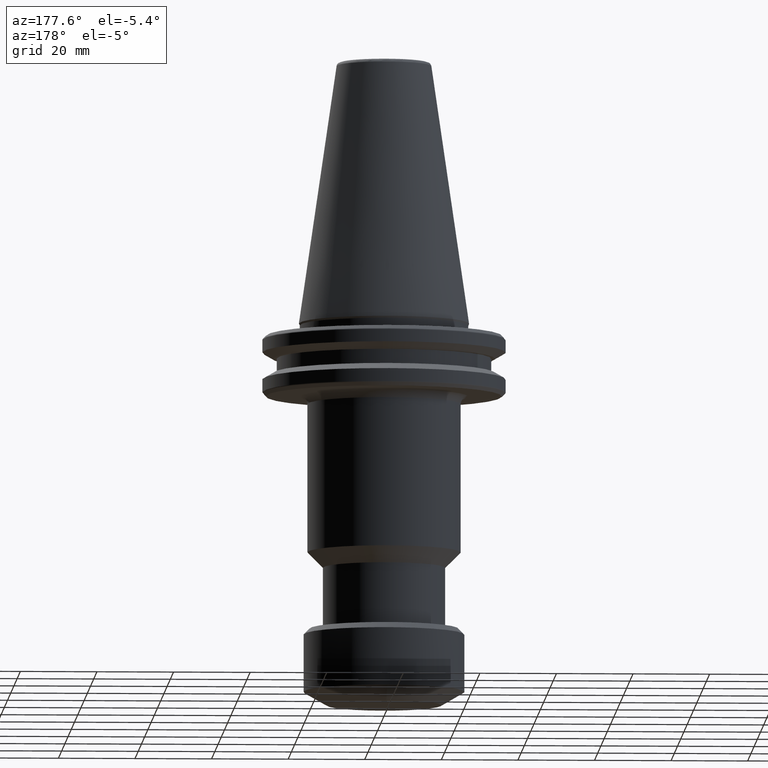
[diagram: clean part render]
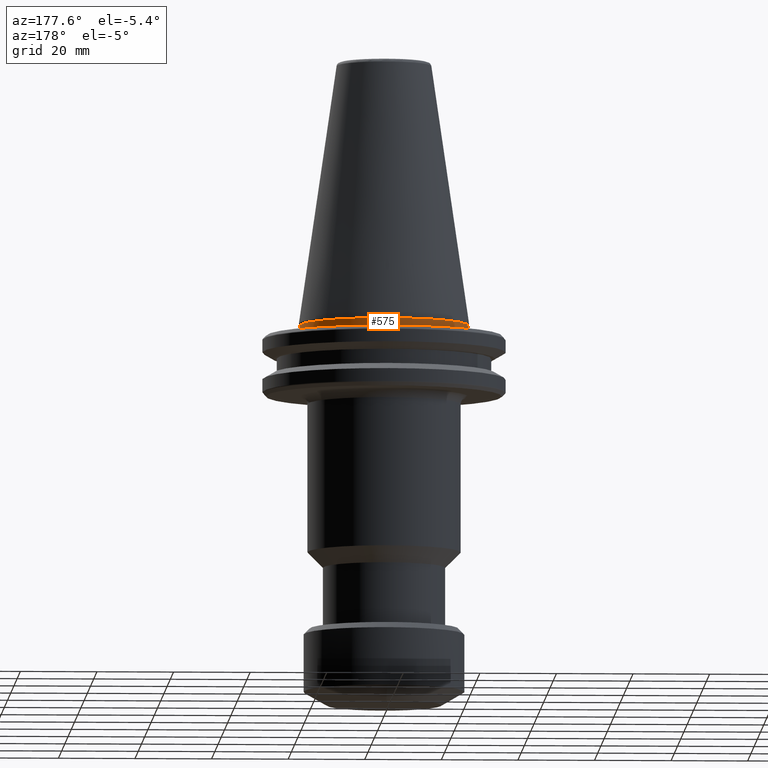
[diagram: same view with one face highlighted and labeled with its STEP entity id]
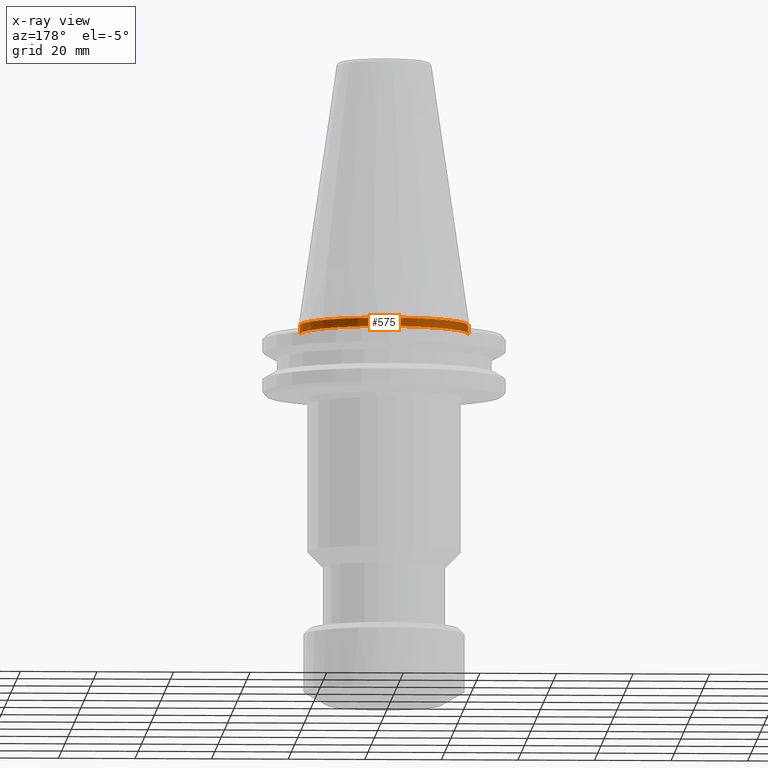
[diagram: x-ray of the same camera — body ghosted, the highlighted face saturated]
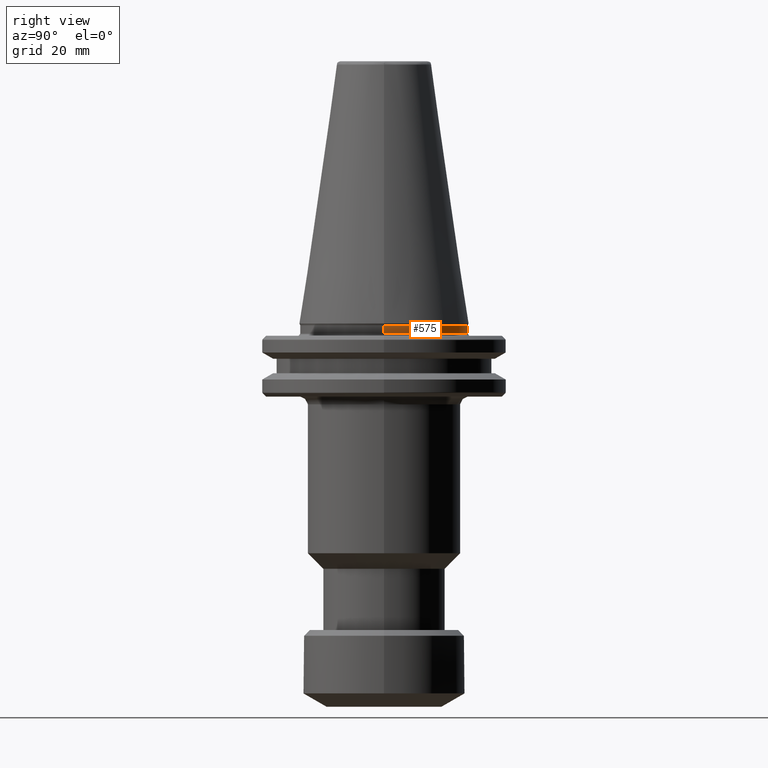
[diagram: same view with one face highlighted and labeled with its STEP entity id]
A machine part, auxiliary view. The second image highlights one B-rep face of the part: STEP entity #575.
The next image is the same camera in x-ray: the body ghosted, the highlighted face saturated — about 1% of this face is hidden behind the body in this view.
A second angle (right view) of the same face is appended — the face is thin or edge-on in the first view.
In plain terms, the highlighted cylindrical surface (partial cylindrical patch) has radius 22 mm, axis along (0, 0, 1).
Its self-contained STEP definition (entity closure, byte-faithful):
#27 = AXIS2_PLACEMENT_3D ( 'NONE', #28, #1432, #791 ) ;
#28 = CARTESIAN_POINT ( 'NONE',  ( 0.0000000000000000000, 0.0000000000000000000, -2.700000000999975400 ) ) ;
#49 = DIRECTION ( 'NONE',  ( 1.000000000000000000, 0.0000000000000000000, 0.0000000000000000000 ) ) ;
#61 = CARTESIAN_POINT ( 'NONE',  ( 0.0000000000000000000, 0.0000000000000000000, -0.4825140569999983300 ) ) ;
#96 = VERTEX_POINT ( 'NONE', #464 ) ;
#264 = EDGE_CURVE ( 'NONE', #96, #1181, #501, .T. ) ;
#331 = CARTESIAN_POINT ( 'NONE',  ( -22.00000000000000000, 2.694222958124176800E-015, -0.4825140569999982800 ) ) ;
#360 = ORIENTED_EDGE ( 'NONE', *, *, #390, .F. ) ;
#390 = EDGE_CURVE ( 'NONE', #995, #1474, #964, .T. ) ;
#416 = EDGE_LOOP ( 'NONE', ( #1296, #653, #360, #737 ) ) ;
#427 = DIRECTION ( 'NONE',  ( 0.0000000000000000000, 0.0000000000000000000, 1.000000000000000000 ) ) ;
#464 = CARTESIAN_POINT ( 'NONE',  ( 22.00000000000000000, 0.0000000000000000000, -2.700000000999988300 ) ) ;
#501 = CIRCLE ( 'NONE', #27, 22.00000000000000000 ) ;
#575 = ADVANCED_FACE ( 'NONE', ( #903 ), #815, .T. ) ;
#611 = AXIS2_PLACEMENT_3D ( 'NONE', #875, #1362, #49 ) ;
#653 = ORIENTED_EDGE ( 'NONE', *, *, #1626, .T. ) ;
#672 = CARTESIAN_POINT ( 'NONE',  ( -22.00000000000000000, -1.128067172944972500E-009, -2.700000000999981600 ) ) ;
#737 = ORIENTED_EDGE ( 'NONE', *, *, #872, .F. ) ;
#778 = CARTESIAN_POINT ( 'NONE',  ( -22.00000000000000000, 2.694222958124176800E-015, -2.700000001000000300 ) ) ;
#791 = DIRECTION ( 'NONE',  ( 1.000000000000000000, 0.0000000000000000000, 0.0000000000000000000 ) ) ;
#795 = VECTOR ( 'NONE', #427, 1000.000000000000000 ) ;
#815 = CYLINDRICAL_SURFACE ( 'NONE', #611, 22.00000000000000000 ) ;
#844 = DIRECTION ( 'NONE',  ( 0.0000000000000000000, 0.0000000000000000000, 1.000000000000000000 ) ) ;
#852 = DIRECTION ( 'NONE',  ( 1.000000000000000000, 0.0000000000000000000, 2.464095846557964700E-017 ) ) ;
#872 = EDGE_CURVE ( 'NONE', #96, #995, #1520, .T. ) ;
#875 = CARTESIAN_POINT ( 'NONE',  ( 0.0000000000000000000, 0.0000000000000000000, -2.700000001000000300 ) ) ;
#903 = FACE_OUTER_BOUND ( 'NONE', #416, .T. ) ;
#964 = CIRCLE ( 'NONE', #1052, 22.00000000000000000 ) ;
#995 = VERTEX_POINT ( 'NONE', #1117 ) ;
#1052 = AXIS2_PLACEMENT_3D ( 'NONE', #61, #844, #852 ) ;
#1117 = CARTESIAN_POINT ( 'NONE',  ( 22.00000000000000000, 0.0000000000000000000, -0.4825140569999982800 ) ) ;
#1144 = VECTOR ( 'NONE', #1167, 1000.000000000000000 ) ;
#1167 = DIRECTION ( 'NONE',  ( 0.0000000000000000000, 0.0000000000000000000, 1.000000000000000000 ) ) ;
#1181 = VERTEX_POINT ( 'NONE', #672 ) ;
#1280 = CARTESIAN_POINT ( 'NONE',  ( 22.00000000000000000, 0.0000000000000000000, -2.700000001000000300 ) ) ;
#1296 = ORIENTED_EDGE ( 'NONE', *, *, #264, .T. ) ;
#1362 = DIRECTION ( 'NONE',  ( 0.0000000000000000000, 0.0000000000000000000, 1.000000000000000000 ) ) ;
#1432 = DIRECTION ( 'NONE',  ( 0.0000000000000000000, 0.0000000000000000000, 1.000000000000000000 ) ) ;
#1474 = VERTEX_POINT ( 'NONE', #331 ) ;
#1520 = LINE ( 'NONE', #1280, #795 ) ;
#1556 = LINE ( 'NONE', #778, #1144 ) ;
#1626 = EDGE_CURVE ( 'NONE', #1181, #1474, #1556, .T. ) ;